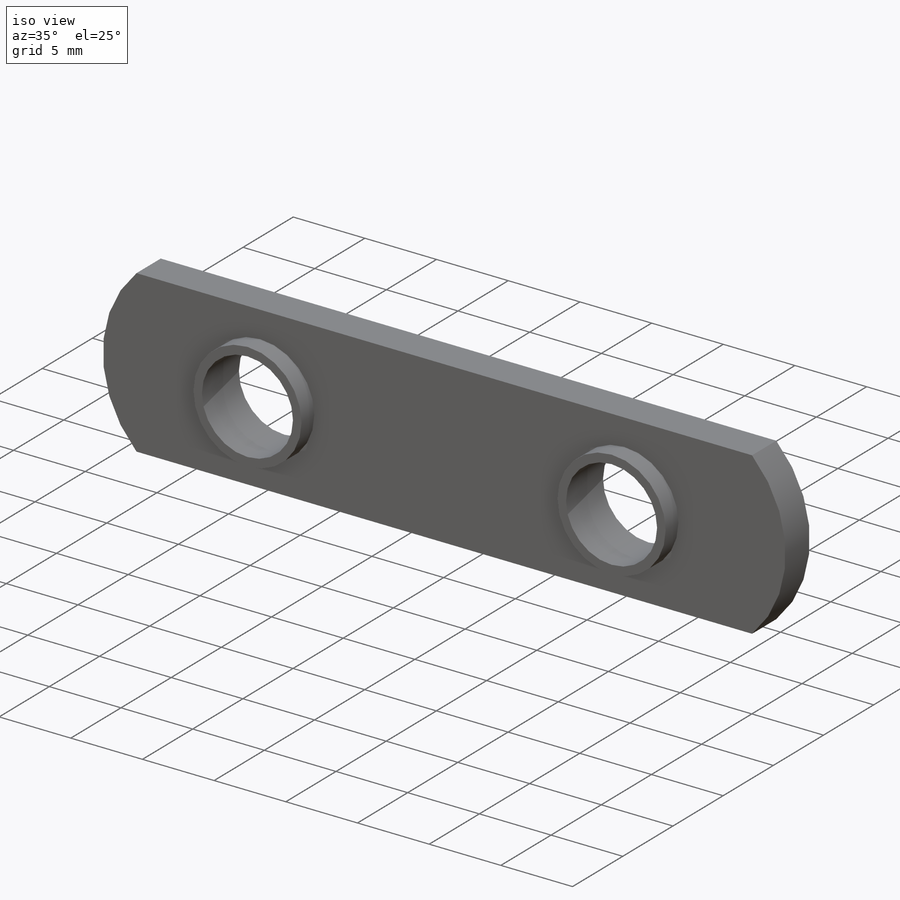
[diagram: iso view]
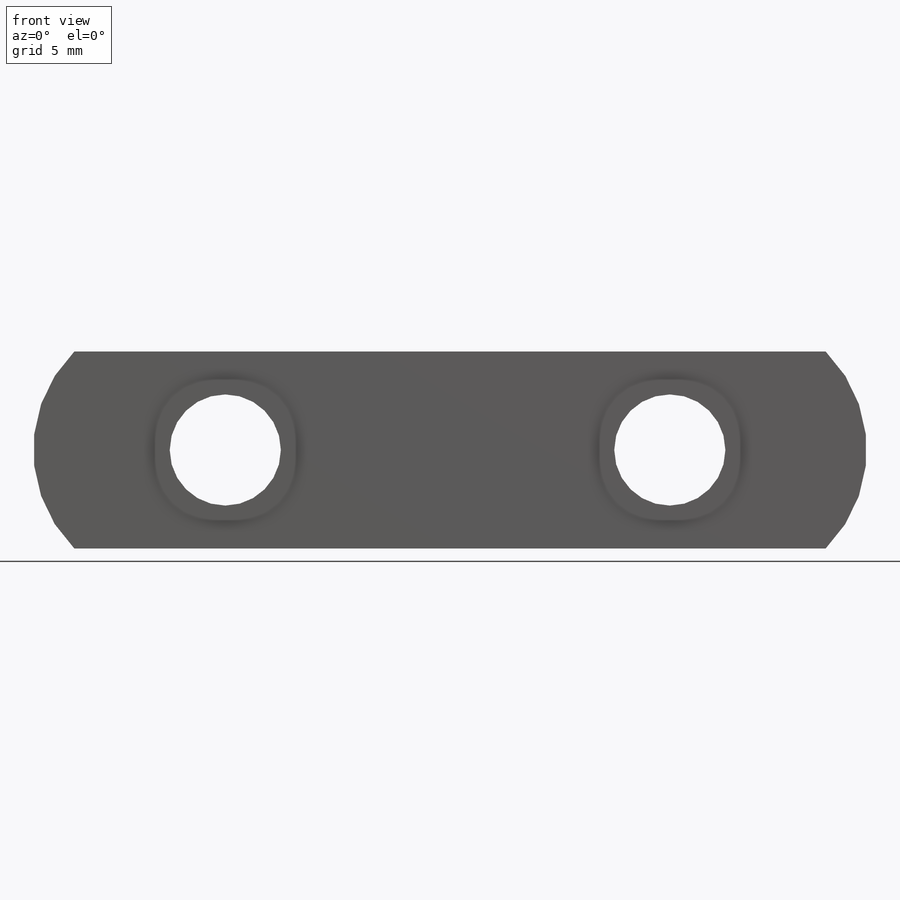
[diagram: front view]
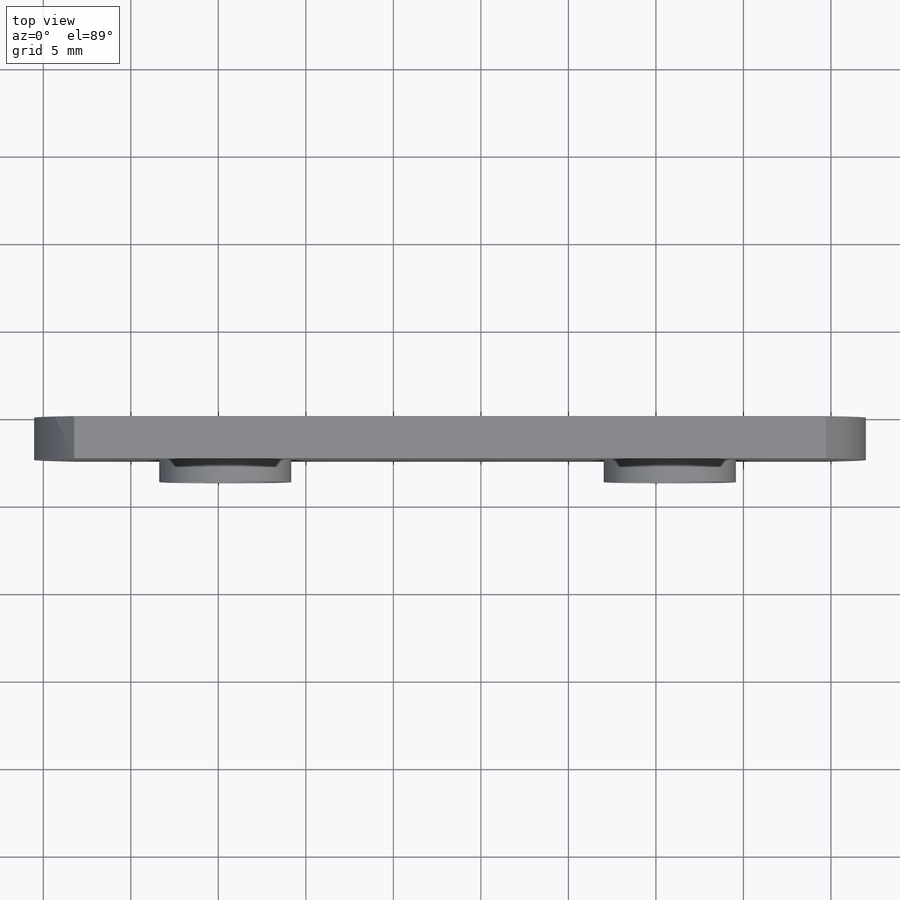
[diagram: top view]
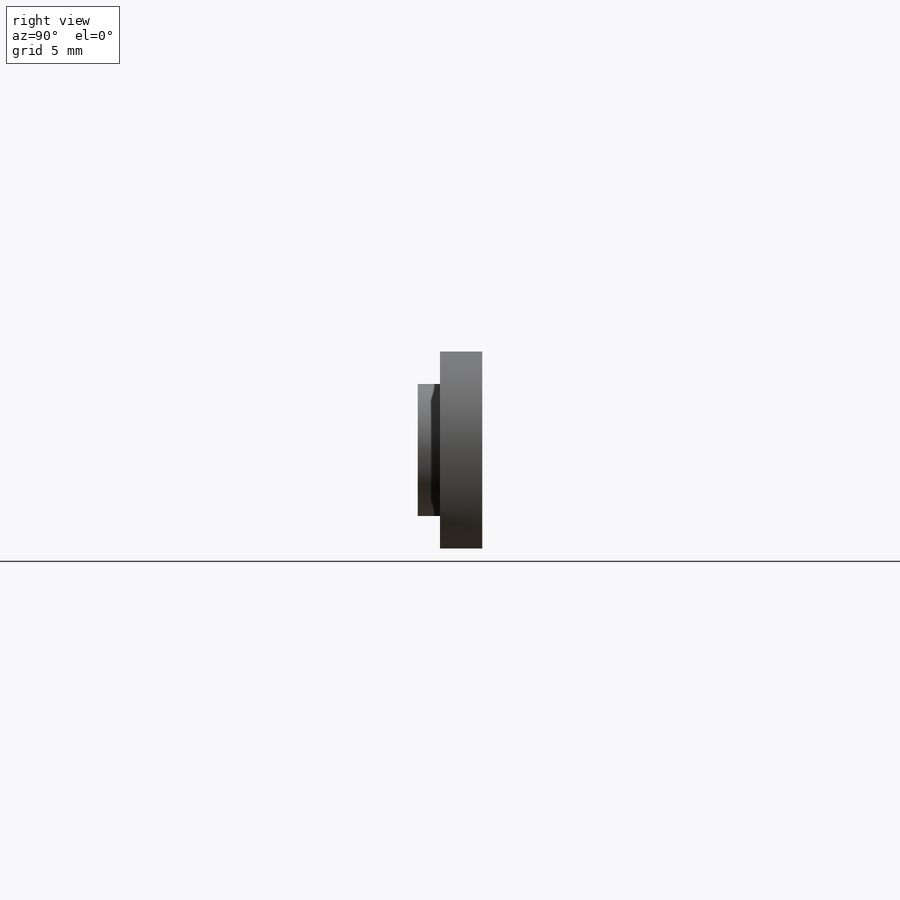
[diagram: right view]
SOLIDWORKS PART (.sldprt)
format: sldprt  version: not decoded by parser v0  size: 185,856 bytes
history: native  units: mm
features: sketch x3, extrude x2, material x1, cut_extrude x1 (+13 scaffold rows collapsed)
feature tree (20):
  scaffold x13  (default folders/planes/origin — collapsed)
  material  "AISI 1020"
  sketch  "Sketch1"  dims[c1.D1=8.3312mm c1.D3=7.9248mm c2.D1=47.625mm c2.D2=11.2522mm c2.D3=~16.20012mm]
  extrude  "Extrude1"  Depth=2.413mm
  sketch  "Sketch4"  dims[c1.D1=7.5438mm c1.D4=7.5438mm c1.D2=11.2522mm c1.D3=25.4mm c2.D4=10.9728mm]
  extrude  "Extrude3"  Depth=1.27mm
  sketch  "Sketch6"  dims[D1=6.35mm]
  cut_extrude  "Cut-Extrude1"  [1 undecoded]
decode coverage: 5 of 6 modeling features carry decoded parameters
note: ~ marks probable driven/reference dimensions
note: 1 parameter value undecoded
note: suppression state not decoded; provenance and decode notes live in map.json
